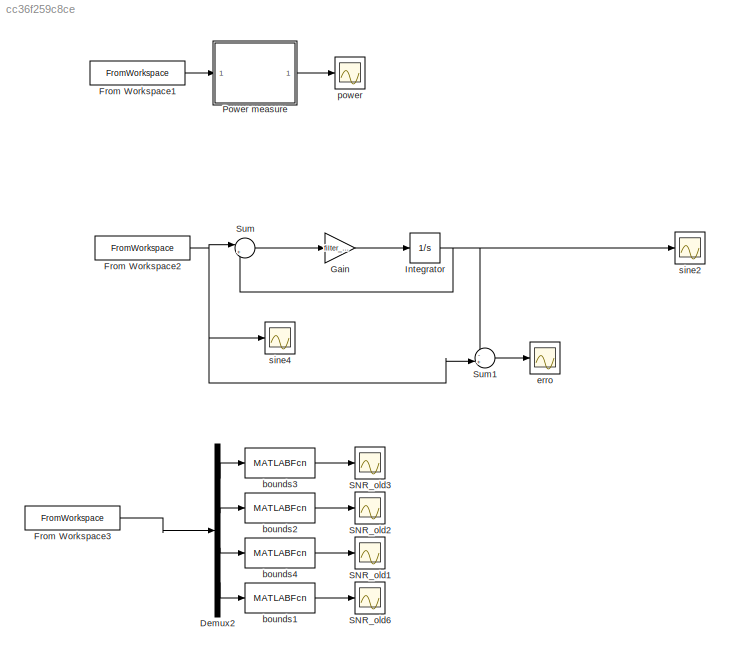
MODEL slx_cc36f259c8ce
KIND model
CONFIG AbsTol = auto
CONFIG EnableMultiTasking = off
CONFIG FixedStep = auto
CONFIG MaxStep = auto
CONFIG MinStep = auto
CONFIG RelTol = 1e-3
CONFIG SampleTimeConstraint = Unconstrained
CONFIG Solver = VariableStepAuto
CONFIG SolverName = VariableStepAuto
CONFIG StartTime = 0.0
CONFIG StopTime = 10.0
BLOCK [Demux] Demux2
  DisplayOption = bar
  Ports = [1, 4]
BLOCK [FromWorkspace] From Workspace1
  SampleTime = 0
  VariableName = controlSignal.u
  ZeroCross = on
BLOCK [FromWorkspace] From Workspace2
  SampleTime = 0
  VariableName = controlSignal.u
  ZeroCross = on
BLOCK [FromWorkspace] From Workspace3
  SampleTime = 0
  VariableName = controlSignal.u
  ZeroCross = on
BLOCK [Gain] Gain
  Gain = filter_pole
  OutDataTypeStr = Inherit: Inherit via internal rule
  ParamDataTypeStr = Inherit: Inherit via internal rule
  SaturateOnIntegerOverflow = off
BLOCK [Integrator] Integrator
  Ports = [1, 1]
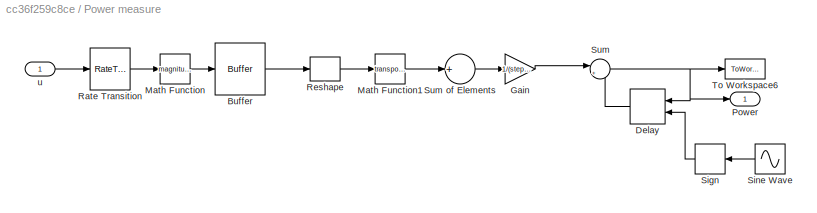
BLOCK [SubSystem] Power measure
  Ports = [1, 1]
  RequestExecContextInheritance = off
  Variant = off
BLOCK [Buffer] Power measure/Buffer
  N = 5 * window/sampling
  OutputFrames = off
BLOCK [Delay] Power measure/Delay
  DelayLength = 1
  ExternalReset = Either
  InputPortMap = u0,r5
  Ports = [2, 1]
BLOCK [Gain] Power measure/Gain
  Gain = 1/(step_period/sampling)
  OutDataTypeStr = Inherit: Inherit via internal rule
  ParamDataTypeStr = Inherit: Inherit via internal rule
  SaturateOnIntegerOverflow = off
BLOCK [Math] Power measure/Math Function
  Operator = magnitude^2
  Ports = [1, 1]
BLOCK [Math] Power measure/Math Function1
  Operator = transpose
  Ports = [1, 1]
BLOCK [Outport] Power measure/Power
  IconDisplay = Port number
BLOCK [RateTransition] Power measure/Rate Transition
  OutPortSampleTime = sampling
BLOCK [Reshape] Power measure/Reshape
  OutputDimensionality = Customize
  OutputDimensions = [5,window/sampling]
  Ports = [1, 1]
BLOCK [Signum] Power measure/Sign
BLOCK [Sin] Power measure/Sine Wave
  Frequency = 2*pi / (2 * step_period)
  Ports = [0, 1]
  SampleTime = window
BLOCK [Sum] Power measure/Sum
  IconShape = round
  InputSameDT = off
  Inputs = |++
  OutDataTypeStr = Inherit: Inherit via internal rule
  Ports = [2, 1]
  SaturateOnIntegerOverflow = off
BLOCK [Sum] Power measure/Sum of Elements
  CollapseMode = Specified dimension
  InputSameDT = off
  Inputs = +
  OutDataTypeStr = Inherit: Inherit via internal rule
  Ports = [1, 1]
  SaturateOnIntegerOverflow = off
BLOCK [ToWorkspace] Power measure/To Workspace6
  FixptAsFi = on
  MaxDataPoints = inf
  Ports = [1]
  SampleTime = -1
  Save2DSignal = 3-D array (concatenate along third dimension)
  SaveFormat = Timeseries
  VariableName = power
BLOCK [Inport] Power measure/u
  IconDisplay = Port number
BLOCK [Scope] SNR_old1
  NumInputPorts = 1
  Ports = [1]
  ScopeSpecificationString = Simulink.scopes.TimeScopeBlockCfg('CurrentConfiguration', extmgr.ConfigurationSet(extmgr.Configuration('Core','General UI',true),extmgr.Configuration('Core','Source UI',true),extmgr.Configuration('Sources','WiredSimulink',true,'DataLoggingVariableName','ScopeData1','DataLoggingSaveFormat','Array','DataLoggingDecimation','1','DataLoggingDecimateData',true),extmgr.Configuration('Visuals','Time Domai...<+2031ch>
BLOCK [Scope] SNR_old2
  NumInputPorts = 1
  Ports = [1]
  ScopeSpecificationString = Simulink.scopes.TimeScopeBlockCfg('CurrentConfiguration', extmgr.ConfigurationSet(extmgr.Configuration('Core','General UI',true),extmgr.Configuration('Core','Source UI',true),extmgr.Configuration('Sources','WiredSimulink',true,'DataLoggingVariableName','ScopeData2','DataLoggingSaveFormat','Array','DataLoggingDecimation','1','DataLoggingDecimateData',true),extmgr.Configuration('Visuals','Time Domai...<+2031ch>
BLOCK [Scope] SNR_old3
  NumInputPorts = 1
  Ports = [1]
  ScopeSpecificationString = Simulink.scopes.TimeScopeBlockCfg('CurrentConfiguration', extmgr.ConfigurationSet(extmgr.Configuration('Core','General UI',true),extmgr.Configuration('Core','Source UI',true),extmgr.Configuration('Sources','WiredSimulink',true,'DataLoggingVariableName','ScopeData3','DataLoggingSaveFormat','Array','DataLoggingDecimation','1','DataLoggingDecimateData',true),extmgr.Configuration('Visuals','Time Domai...<+2031ch>
BLOCK [Scope] SNR_old6
  NumInputPorts = 1
  Ports = [1]
  ScopeSpecificationString = Simulink.scopes.TimeScopeBlockCfg('CurrentConfiguration', extmgr.ConfigurationSet(extmgr.Configuration('Core','General UI',true),extmgr.Configuration('Core','Source UI',true),extmgr.Configuration('Sources','WiredSimulink',true,'DataLoggingVariableName','ScopeData13','DataLoggingSaveFormat','Array','DataLoggingDecimation','1','DataLoggingDecimateData',true),extmgr.Configuration('Visuals','Time Doma...<+2006ch>
BLOCK [Sum] Sum
  IconShape = round
  InputSameDT = off
  Inputs = |+-
  OutDataTypeStr = Inherit: Inherit via internal rule
  Ports = [2, 1]
  SaturateOnIntegerOverflow = off
BLOCK [Sum] Sum1
  IconShape = round
  InputSameDT = off
  Inputs = -+|
  OutDataTypeStr = Inherit: Inherit via internal rule
  Ports = [2, 1]
  SaturateOnIntegerOverflow = off
BLOCK [MATLABFcn] bounds1
  MATLABFcn = sinalruido
  Output1D = off
  Ports = [1, 1]
BLOCK [MATLABFcn] bounds2
  MATLABFcn = sinalruido
  Output1D = off
  Ports = [1, 1]
BLOCK [MATLABFcn] bounds3
  MATLABFcn = sinalruido
  Output1D = off
  Ports = [1, 1]
BLOCK [MATLABFcn] bounds4
  MATLABFcn = sinalruido
  Output1D = off
  Ports = [1, 1]
BLOCK [Scope] erro
  NumInputPorts = 1
  Ports = [1]
  ScopeSpecificationString = Simulink.scopes.TimeScopeBlockCfg('CurrentConfiguration', extmgr.ConfigurationSet(extmgr.Configuration('Core','General UI',true),extmgr.Configuration('Core','Source UI',true),extmgr.Configuration('Sources','WiredSimulink',true,'DataLoggingVariableName','ScopeData1','DataLoggingSaveFormat','Array','DataLoggingDecimation','1','DataLoggingDecimateData',true),extmgr.Configuration('Visuals','Time Domai...<+1736ch>
BLOCK [Scope] power
  NumInputPorts = 1
  Ports = [1]
  ScopeSpecificationString = Simulink.scopes.TimeScopeBlockCfg('CurrentConfiguration', extmgr.ConfigurationSet(extmgr.Configuration('Core','General UI',true),extmgr.Configuration('Core','Source UI',true),extmgr.Configuration('Sources','WiredSimulink',true,'DataLoggingVariableName','ScopeData3','DataLoggingSaveFormat','Array','DataLoggingDecimation','1','DataLoggingDecimateData',true),extmgr.Configuration('Visuals','Time Domai...<+1778ch>
BLOCK [Scope] sine2
  NumInputPorts = 1
  Ports = [1]
  ScopeSpecificationString = Simulink.scopes.TimeScopeBlockCfg('CurrentConfiguration', extmgr.ConfigurationSet(extmgr.Configuration('Core','General UI',true),extmgr.Configuration('Core','Source UI',true),extmgr.Configuration('Sources','WiredSimulink',true,'DataLoggingVariableName','ScopeData7','DataLoggingSaveFormat','Array','DataLoggingDecimation','1','DataLoggingDecimateData',true),extmgr.Configuration('Visuals','Time Domai...<+1784ch>
BLOCK [Scope] sine4
  NumInputPorts = 1
  Ports = [1]
  ScopeSpecificationString = Simulink.scopes.TimeScopeBlockCfg('CurrentConfiguration', extmgr.ConfigurationSet(extmgr.Configuration('Core','General UI',true),extmgr.Configuration('Core','Source UI',true),extmgr.Configuration('Sources','WiredSimulink',true,'DataLoggingSaveFormat','Array','DataLoggingDecimation','1','DataLoggingDecimateData',true),extmgr.Configuration('Visuals','Time Domain',true,'SerializedDisplays',{struct('M...<+1777ch>
LINE Demux2:1 -> bounds3:1
LINE Demux2:2 -> bounds2:1
LINE Demux2:3 -> bounds4:1
LINE Demux2:4 -> bounds1:1
LINE From Workspace1:1 -> Power measure:1
NET From Workspace2:1 -> Sum1:2, Sum:1, sine4:1
LINE From Workspace3:1 -> Demux2:1
LINE Gain:1 -> Integrator:1
NET Integrator:1 -> Sum1:1, Sum:2, sine2:1
LINE Power measure/Buffer:1 -> Power measure/Reshape:1
LINE Power measure/Delay:1 -> Power measure/Sum:2
LINE Power measure/Gain:1 -> Power measure/Sum:1
LINE Power measure/Math Function1:1 -> Power measure/Sum of Elements:1
LINE Power measure/Math Function:1 -> Power measure/Buffer:1
LINE Power measure/Rate Transition:1 -> Power measure/Math Function:1
LINE Power measure/Reshape:1 -> Power measure/Math Function1:1
LINE Power measure/Sign:1 -> Power measure/Delay:2
LINE Power measure/Sine Wave:1 -> Power measure/Sign:1
LINE Power measure/Sum of Elements:1 -> Power measure/Gain:1
NET Power measure/Sum:1 -> Power measure/Delay:1, Power measure/Power:1, Power measure/To Workspace6:1
LINE Power measure/u:1 -> Power measure/Rate Transition:1
LINE Power measure:1 -> power:1
LINE Sum1:1 -> erro:1
LINE Sum:1 -> Gain:1
LINE bounds1:1 -> SNR_old6:1
LINE bounds2:1 -> SNR_old2:1
LINE bounds3:1 -> SNR_old3:1
LINE bounds4:1 -> SNR_old1:1
note: NET lines group one-source signal fan-out (src -> all destinations, sorted); 1:1 wires keep LINE
